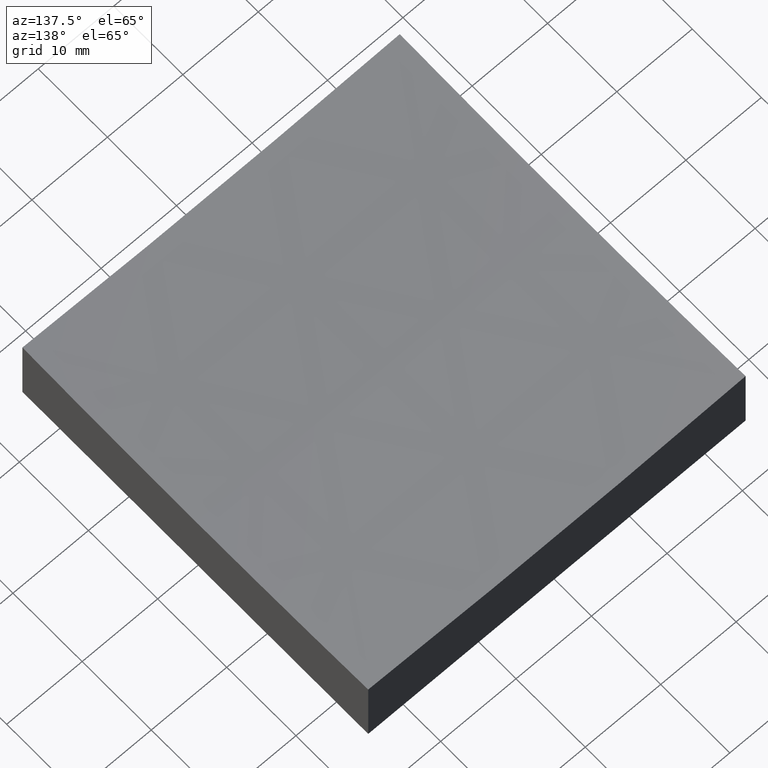
[diagram: clean part render]
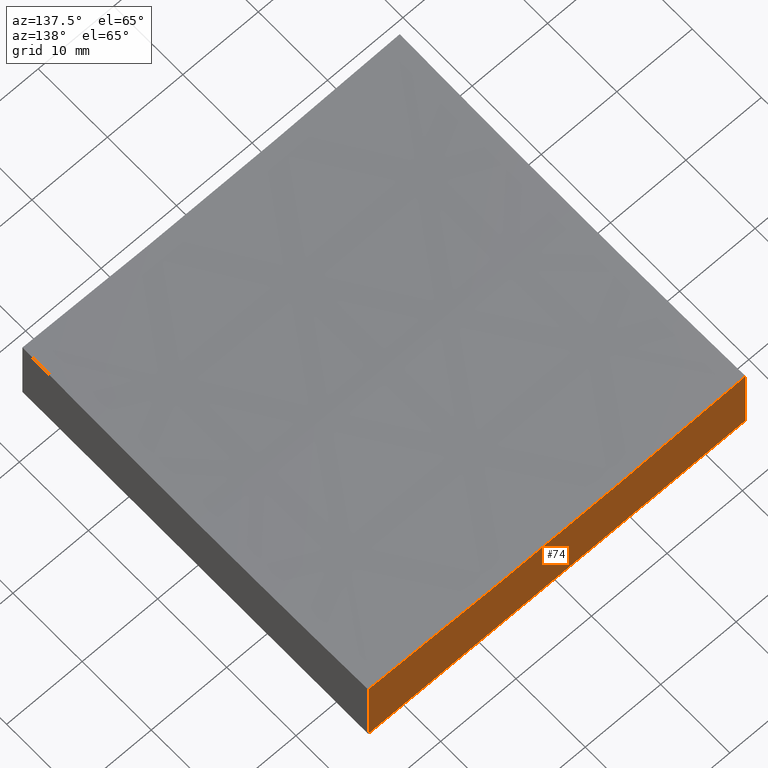
[diagram: same view with one face highlighted and labeled with its STEP entity id]
A machine part, auxiliary view. The second image highlights one B-rep face of the part: STEP entity #74.
In plain terms, the highlighted planar face has unit normal (0, 1, 0).
Its self-contained STEP definition (entity closure, byte-faithful):
#4 = CIRCLE ( 'NONE', #30, 499.3746088859544443 ) ;
#14 = DIRECTION ( 'NONE',  ( -0.0000000000000000000, -0.0000000000000000000, -1.000000000000000000 ) ) ;
#16 = ORIENTED_EDGE ( 'NONE', *, *, #63, .T. ) ;
#30 = AXIS2_PLACEMENT_3D ( 'NONE', #192, #201, #38 ) ;
#31 = VERTEX_POINT ( 'NONE', #169 ) ;
#33 = DIRECTION ( 'NONE',  ( 1.000000000000000000, 0.0000000000000000000, 0.0000000000000000000 ) ) ;
#38 = DIRECTION ( 'NONE',  ( 0.0000000000000000000, 0.0000000000000000000, 1.000000000000000000 ) ) ;
#45 = EDGE_CURVE ( 'NONE', #174, #31, #4, .T. ) ;
#51 = ORIENTED_EDGE ( 'NONE', *, *, #77, .F. ) ;
#55 = EDGE_LOOP ( 'NONE', ( #152, #16, #188, #51 ) ) ;
#59 = CARTESIAN_POINT ( 'NONE',  ( -25.00000000000000355, 24.99999999999999645, 50.00000000000000000 ) ) ;
#60 = VECTOR ( 'NONE', #136, 1000.000000000000000 ) ;
#63 = EDGE_CURVE ( 'NONE', #174, #104, #118, .T. ) ;
#68 = CARTESIAN_POINT ( 'NONE',  ( 24.99999999999999645, 24.99999999999999645, 50.00000000000000000 ) ) ;
#74 = ADVANCED_FACE ( 'NONE', ( #226 ), #196, .T. ) ;
#77 = EDGE_CURVE ( 'NONE', #31, #209, #114, .T. ) ;
#93 = AXIS2_PLACEMENT_3D ( 'NONE', #59, #117, #154 ) ;
#101 = VECTOR ( 'NONE', #14, 1000.000000000000000 ) ;
#104 = VERTEX_POINT ( 'NONE', #191 ) ;
#114 = LINE ( 'NONE', #193, #101 ) ;
#117 = DIRECTION ( 'NONE',  ( 0.0000000000000000000, 1.000000000000000000, 0.0000000000000000000 ) ) ;
#118 = LINE ( 'NONE', #68, #60 ) ;
#125 = VECTOR ( 'NONE', #33, 1000.000000000000000 ) ;
#129 = CARTESIAN_POINT ( 'NONE',  ( -25.00000000000000355, 24.99999999999999645, 0.0000000000000000000 ) ) ;
#136 = DIRECTION ( 'NONE',  ( -0.0000000000000000000, -0.0000000000000000000, -1.000000000000000000 ) ) ;
#152 = ORIENTED_EDGE ( 'NONE', *, *, #45, .F. ) ;
#154 = DIRECTION ( 'NONE',  ( 0.0000000000000000000, -0.0000000000000000000, 1.000000000000000000 ) ) ;
#169 = CARTESIAN_POINT ( 'NONE',  ( -25.00000000000000711, 24.99999999999999645, 10.25156641849989114 ) ) ;
#171 = LINE ( 'NONE', #129, #125 ) ;
#174 = VERTEX_POINT ( 'NONE', #178 ) ;
#178 = CARTESIAN_POINT ( 'NONE',  ( 24.99999999999999645, 24.99999999999999645, 10.25156641849989114 ) ) ;
#188 = ORIENTED_EDGE ( 'NONE', *, *, #233, .F. ) ;
#191 = CARTESIAN_POINT ( 'NONE',  ( 24.99999999999999645, 24.99999999999999645, 0.0000000000000000000 ) ) ;
#192 = CARTESIAN_POINT ( 'NONE',  ( 6.233452207660027876E-14, 24.99999999999999645, 509.0000000000000000 ) ) ;
#193 = CARTESIAN_POINT ( 'NONE',  ( -25.00000000000000355, 24.99999999999999645, 50.00000000000000000 ) ) ;
#196 = PLANE ( 'NONE',  #93 ) ;
#201 = DIRECTION ( 'NONE',  ( 0.0000000000000000000, 1.000000000000000000, 0.0000000000000000000 ) ) ;
#209 = VERTEX_POINT ( 'NONE', #220 ) ;
#220 = CARTESIAN_POINT ( 'NONE',  ( -25.00000000000000355, 24.99999999999999645, 0.0000000000000000000 ) ) ;
#226 = FACE_OUTER_BOUND ( 'NONE', #55, .T. ) ;
#233 = EDGE_CURVE ( 'NONE', #209, #104, #171, .T. ) ;